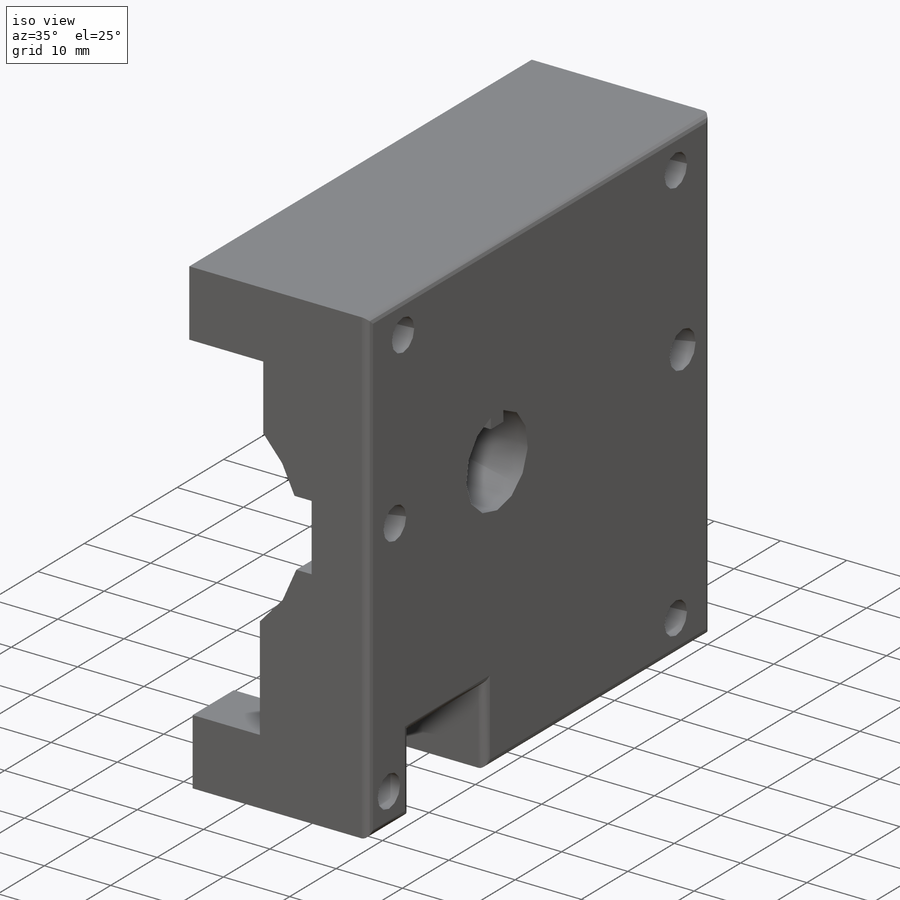
[diagram: iso view]
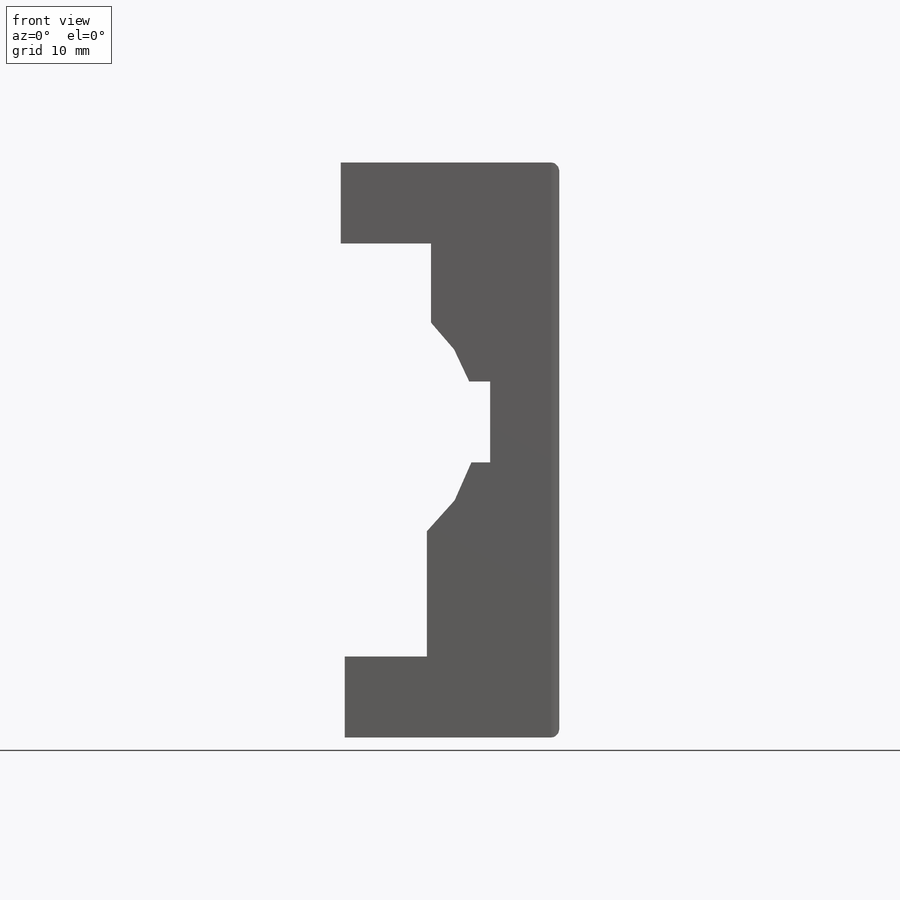
[diagram: front view]
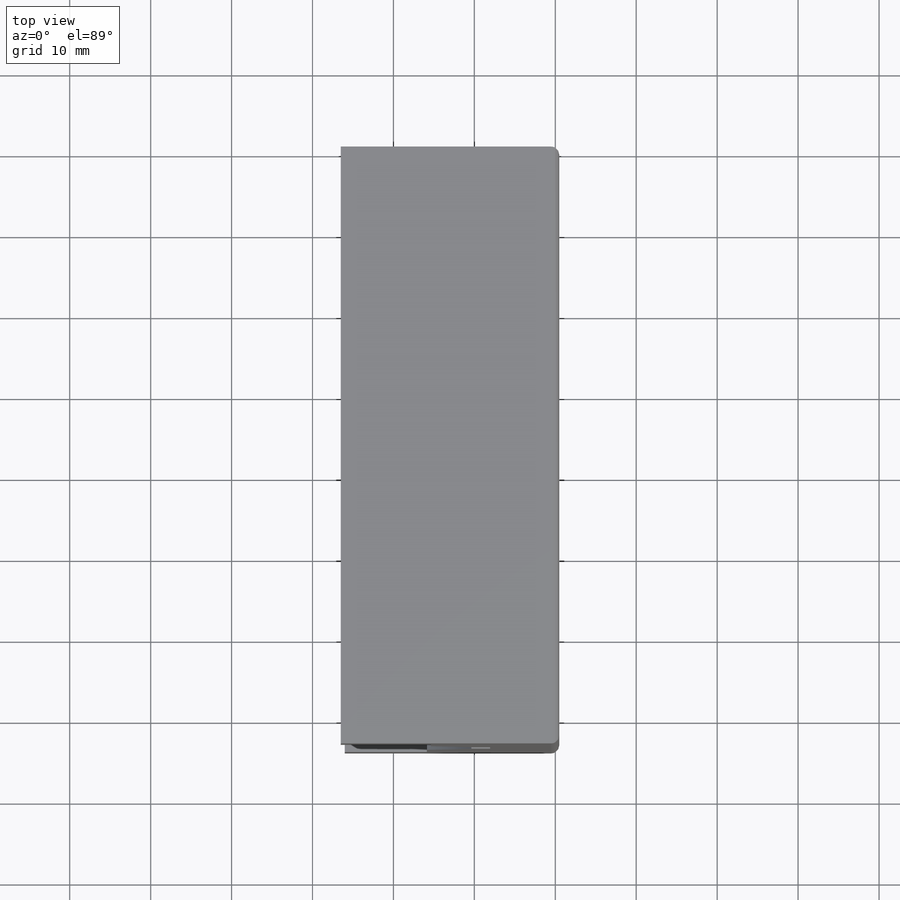
[diagram: top view]
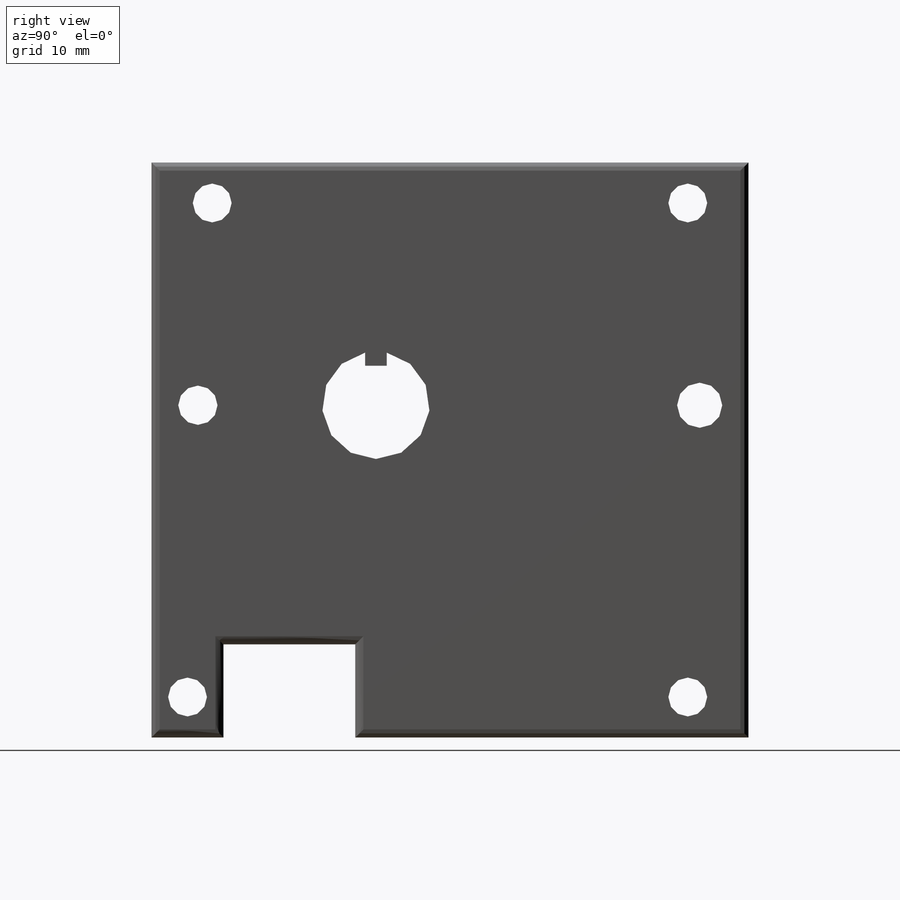
[diagram: right view]
SOLIDWORKS PART (.sldprt)
format: sldprt  version: not decoded by parser v0  size: 338,944 bytes
history: native  units: mm
features: cut_extrude x4, material x1, sketch x1, extrude x1, hole x1, fillet x1 + 1 further entry (+12 scaffold rows collapsed)
feature tree (22):
  scaffold x12  (default folders/planes/origin — collapsed)
  material  "Material <not specified>"
  "Annotations"  RD1=73.76mm
  sketch  "Profile"  dims[c1.D1=16.261mm c1.D14=16.261mm c1.D17=16.261mm c2.D1=~29.496236mm c2.D2=~13.953988mm c3.D1=~63.984142mm c3.D2=~20.647365mm c4.D1=~58.311789mm c4.D2=~16.903612mm c5.D1=~59.900048mm c5.D2=~22.462518mm c6.D1=~5.627275mm c6.D2=~1.381725mm c7.D1=~13.983194mm c7.D2=10.0mm c7.D3=2.59mm c7.D4=2.318mm c7.D5=9.775mm c7.D6=11.15mm c7.D7=15.49mm c7.D8=10.15mm c7.D9=10.0mm c7.D10=~22.462518mm c7.D11=~59.900048mm c7.D12=~22.462518mm c8.D10=26.5mm c8.D12=27.0mm c8.D13=10.0mm c8.D14=51.04mm c8.D11=71.04mm c8.D15=23.99mm c8.D16=5.492mm]
  extrude  "ProfileExtrude"  Depth=73.76mm
  cut_extrude  "HoseWindowCut"  Depth=4.8mm
  cut_extrude  "CageScrewsCut"  [1 undecoded]
  hole  "AxleHole"  Diameter=13.278mm
  cut_extrude  "AxleHoleCut"  Depth=21.027764mm
  cut_extrude  "SetScrewsCut"  [1 undecoded]
  fillet  "Fillet1"  Radius=1mm
decode coverage: 6 of 8 modeling features carry decoded parameters; 1 rows unclassified (native names shown)
note: ~ marks probable driven/reference dimensions
note: 2 parameter values undecoded
note: suppression state not decoded; provenance and decode notes live in map.json
